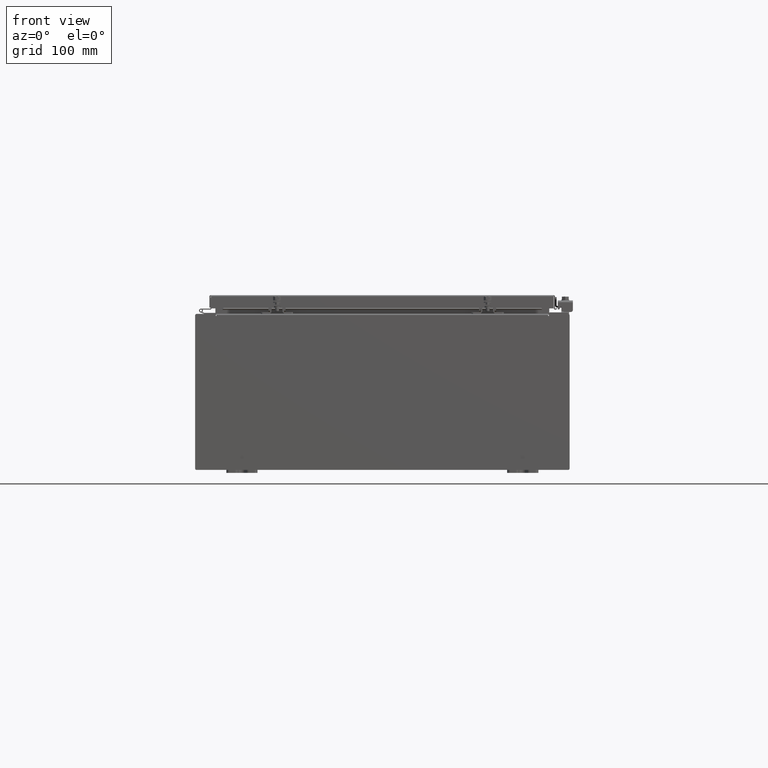
[diagram: clean part render]
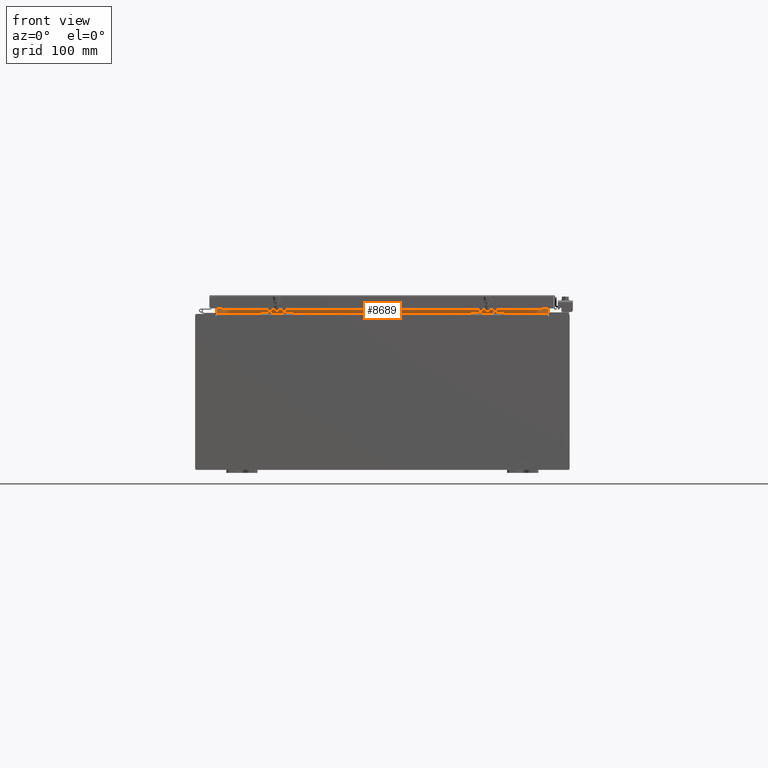
[diagram: same view with one face highlighted and labeled with its STEP entity id]
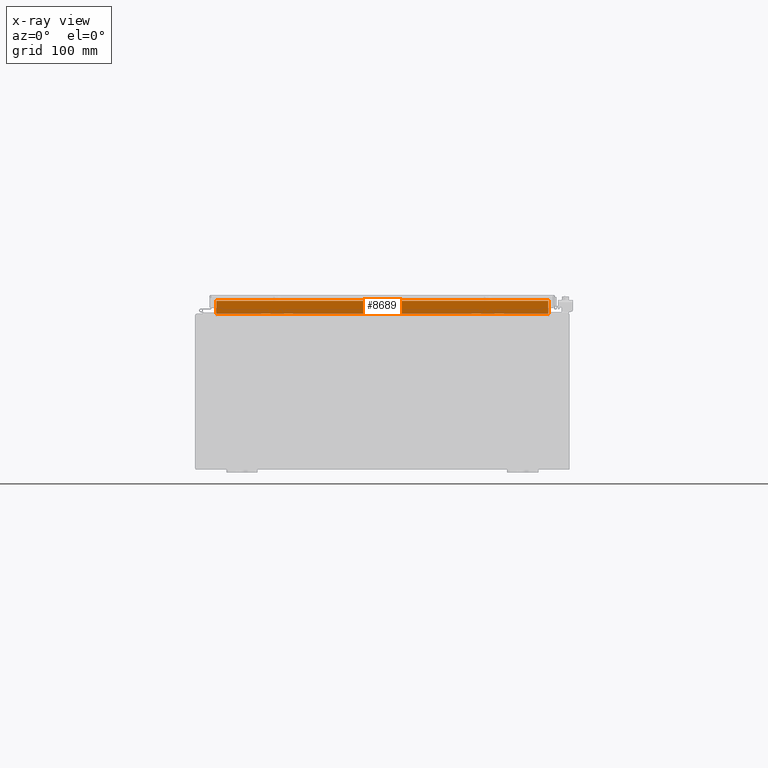
[diagram: x-ray of the same camera — body ghosted, the highlighted face saturated]
A machine part, front view. The second image highlights one B-rep face of the part: STEP entity #8689.
The next image is the same camera in x-ray: the body ghosted, the highlighted face saturated — about 0% of this face is hidden behind the body in this view.
In plain terms, the highlighted planar face has unit normal (-0, -1, 0).
Its self-contained STEP definition (entity closure, byte-faithful):
#4574 = ORIENTED_EDGE ( 'NONE', *, *, #26494, .F. ) ;
#4889 = CARTESIAN_POINT ( 'NONE',  ( -3.495496509759975400E-016, -1.300299999999999300, 0.0000000000000000000 ) ) ;
#5122 = VERTEX_POINT ( 'NONE', #22530 ) ;
#8689 = ADVANCED_FACE ( 'NONE', ( #38912 ), #31159, .T. ) ;
#8960 = CARTESIAN_POINT ( 'NONE',  ( -10.63720000000000200, -1.300299999999999300, 5.837600000000003700 ) ) ;
#9170 = VECTOR ( 'NONE', #29919, 39.37007874015748100 ) ;
#9459 = CARTESIAN_POINT ( 'NONE',  ( -10.63720000000000400, -1.300299999999999300, 5.013000000000002600 ) ) ;
#9564 = VERTEX_POINT ( 'NONE', #8960 ) ;
#9687 = ORIENTED_EDGE ( 'NONE', *, *, #34051, .F. ) ;
#11820 = DIRECTION ( 'NONE',  ( -8.326672684688674100E-016, 1.677591767810434500E-016, -1.000000000000000000 ) ) ;
#13565 = CARTESIAN_POINT ( 'NONE',  ( 10.63720000000000200, -1.300299999999999300, 5.837600000000014300 ) ) ;
#13922 = CARTESIAN_POINT ( 'NONE',  ( 10.63720000000000200, -1.300299999999999300, 5.925300000000014200 ) ) ;
#14081 = CARTESIAN_POINT ( 'NONE',  ( 10.63720000000000200, -1.300299999999999300, 5.837600000000014300 ) ) ;
#14570 = VECTOR ( 'NONE', #30283, 39.37007874015748100 ) ;
#15207 = LINE ( 'NONE', #41428, #22898 ) ;
#15434 = EDGE_CURVE ( 'NONE', #5122, #28090, #40796, .T. ) ;
#17898 = LINE ( 'NONE', #13565, #9170 ) ;
#18072 = DIRECTION ( 'NONE',  ( 8.326672684688674100E-016, -1.677591767810434500E-016, 1.000000000000000000 ) ) ;
#18928 = ORIENTED_EDGE ( 'NONE', *, *, #25594, .F. ) ;
#22530 = CARTESIAN_POINT ( 'NONE',  ( 10.63720000000000400, -1.300299999999999300, 5.013000000000013200 ) ) ;
#22898 = VECTOR ( 'NONE', #11820, 39.37007874015748100 ) ;
#25594 = EDGE_CURVE ( 'NONE', #9564, #33263, #15207, .T. ) ;
#26494 = EDGE_CURVE ( 'NONE', #33263, #5122, #35697, .T. ) ;
#27244 = CARTESIAN_POINT ( 'NONE',  ( -10.63720000000000200, -1.300299999999999300, 5.013000000000002600 ) ) ;
#28090 = VERTEX_POINT ( 'NONE', #14081 ) ;
#28274 = EDGE_LOOP ( 'NONE', ( #18928, #9687, #37941, #4574 ) ) ;
#29919 = DIRECTION ( 'NONE',  ( -1.000000000000000000, -2.688223102148527500E-016, -8.326672684688674100E-016 ) ) ;
#30262 = AXIS2_PLACEMENT_3D ( 'NONE', #4889, #37753, #18072 ) ;
#30283 = DIRECTION ( 'NONE',  ( 8.326672684688674100E-016, -1.677591767810434500E-016, 1.000000000000000000 ) ) ;
#31159 = PLANE ( 'NONE',  #30262 ) ;
#33263 = VERTEX_POINT ( 'NONE', #9459 ) ;
#33715 = DIRECTION ( 'NONE',  ( 1.000000000000000000, 2.688223102148527500E-016, 8.326672684688674100E-016 ) ) ;
#34051 = EDGE_CURVE ( 'NONE', #28090, #9564, #17898, .T. ) ;
#34661 = VECTOR ( 'NONE', #33715, 39.37007874015748100 ) ;
#35697 = LINE ( 'NONE', #27244, #34661 ) ;
#37753 = DIRECTION ( 'NONE',  ( 2.688223102148531000E-016, 1.000000000000000000, 1.677591767810432300E-016 ) ) ;
#37941 = ORIENTED_EDGE ( 'NONE', *, *, #15434, .F. ) ;
#38912 = FACE_OUTER_BOUND ( 'NONE', #28274, .T. ) ;
#40796 = LINE ( 'NONE', #13922, #14570 ) ;
#41428 = CARTESIAN_POINT ( 'NONE',  ( -10.63720000000000200, -1.300299999999999300, 5.000000000000004400 ) ) ;